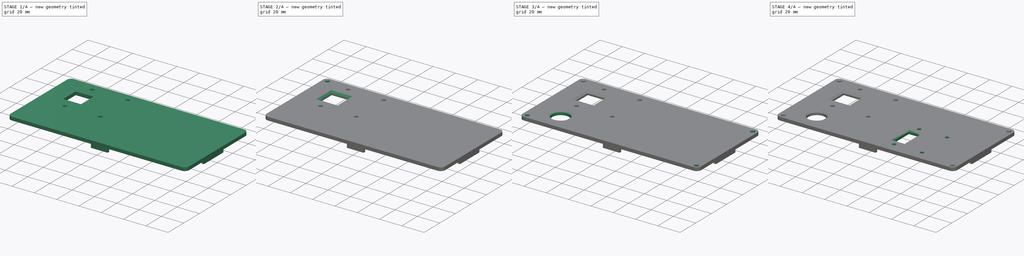
[diagram: build sequence overview — one tinted view per stage of 4, left to right]
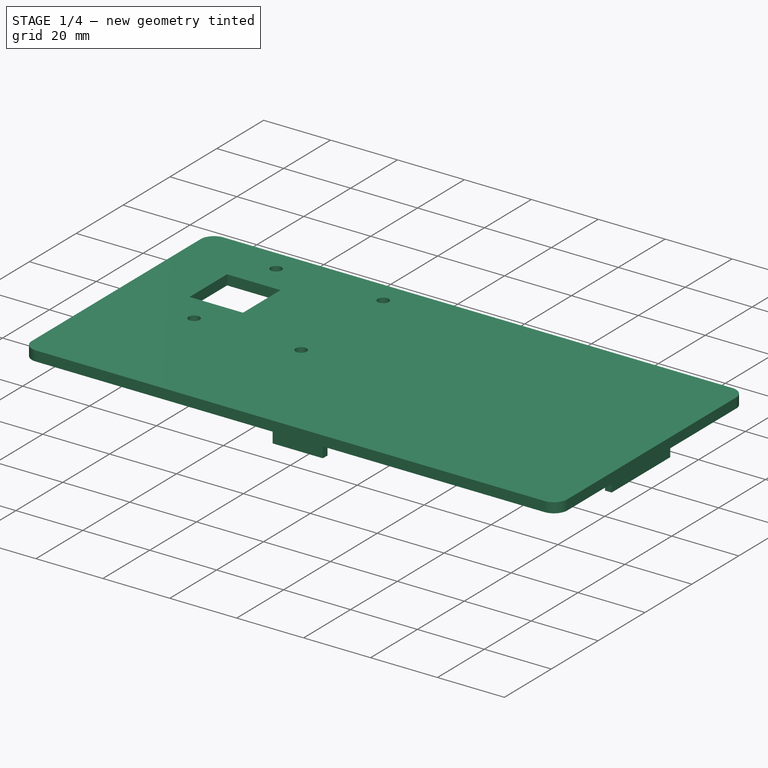
[diagram: stage 1 of 4 — iso view after this stage's code; geometry added in this stage tinted green]
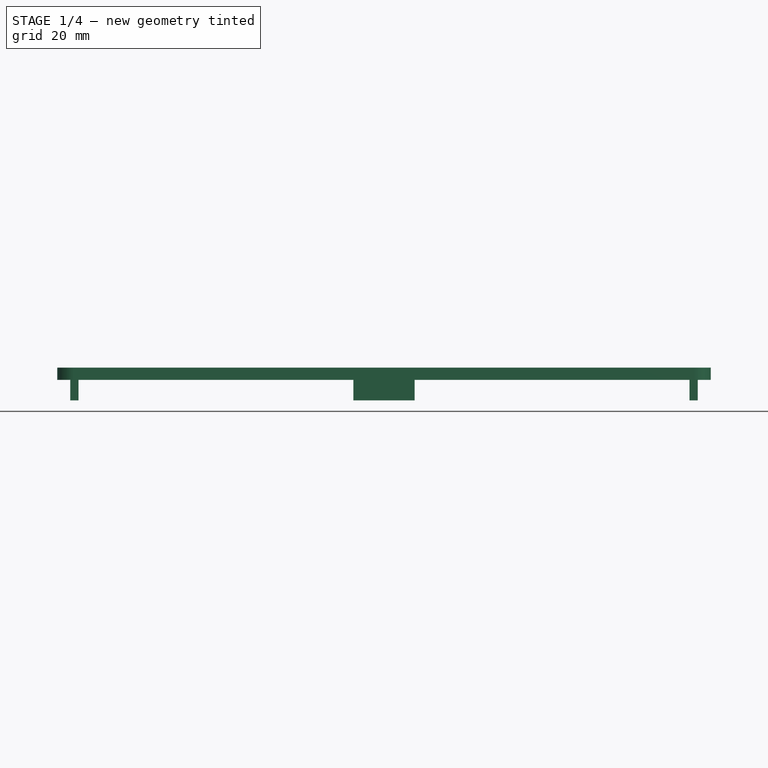
[diagram: stage 1 of 4 — front view after this stage's code; geometry added in this stage tinted green]
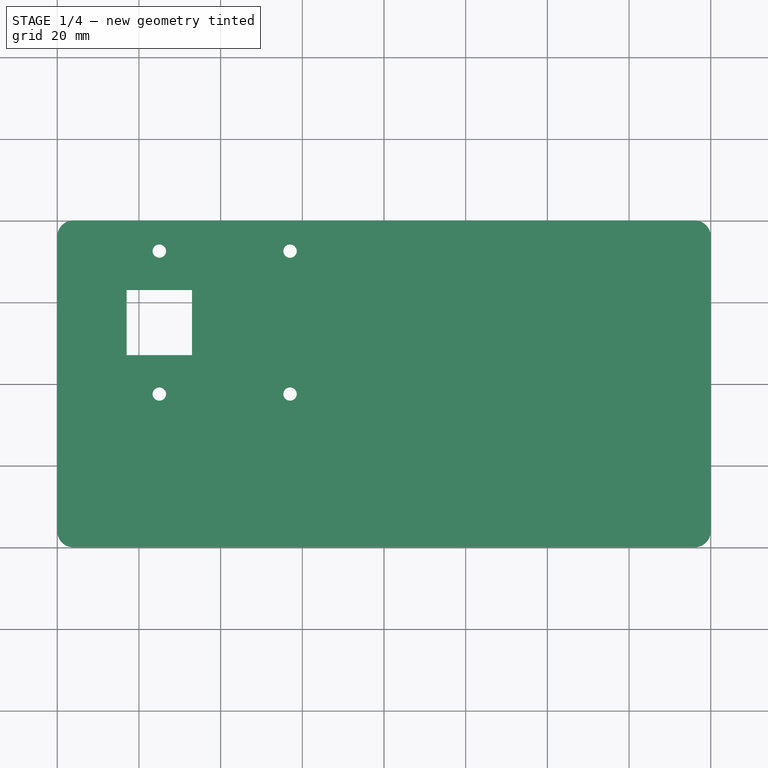
[diagram: stage 1 of 4 — top view after this stage's code; geometry added in this stage tinted green]
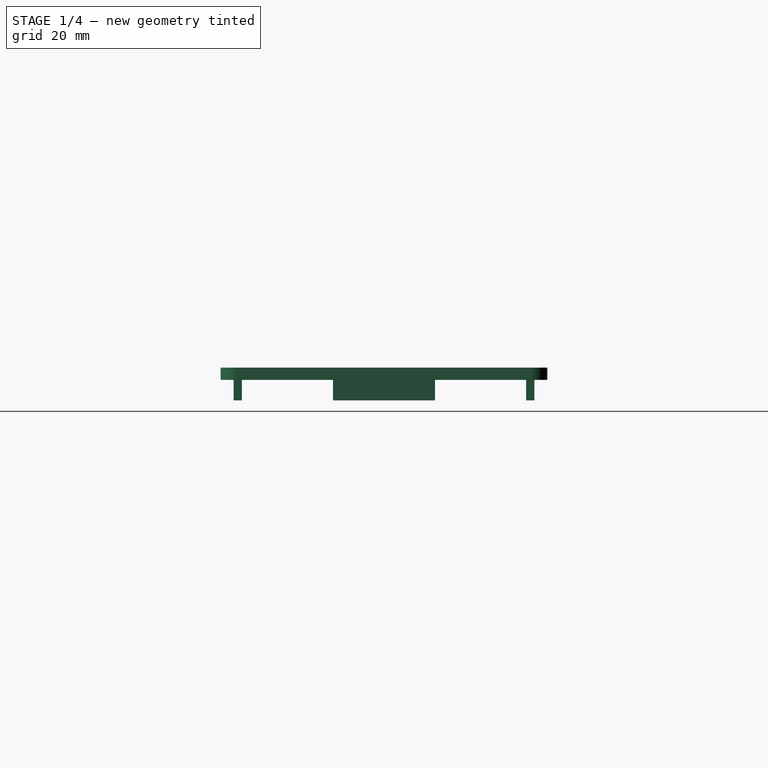
[diagram: stage 1 of 4 — right view after this stage's code; geometry added in this stage tinted green]
FCSTD DOCUMENT  (FreeCAD 1.0R39319 (Git))
Label: PokrywkaGlowna
License: All rights reserved
LicenseURL: https://en.wikipedia.org/wiki/All_rights_reserved
objects: Sketcher::SketchObject×7, PartDesign::Pocket×5, PartDesign::Chamfer×4, PartDesign::Pad×2, PartDesign::Mirrored×2, PartDesign::Fillet×1, PartDesign::MultiTransform×1, PartDesign::LinearPattern×1, PartDesign::Body×1
note: 59 computed .brp shape members not serialized (recipe doc carries the construction recipe); baked Part::Feature solids carry a one-line shape summary decoded from their .brp

FEATURE [Sketcher::SketchObject] Sketch
  ArcFitTolerance = 1e-06
  AttachmentSupport = -> [XY_Plane]
  FullyConstrained = true
  MakeInternals = false
  MapMode = 5
  sketch-geometry (5):
    g0: LineSegment StartX=-80 StartY=-40 StartZ=0 EndX=80 EndY=-40 EndZ=0
    g1: LineSegment StartX=80 StartY=-40 StartZ=0 EndX=80 EndY=40 EndZ=0
    g2: LineSegment StartX=80 StartY=40 StartZ=0 EndX=-80 EndY=40 EndZ=0
    g3: LineSegment StartX=-80 StartY=40 StartZ=0 EndX=-80 EndY=-40 EndZ=0
    g4: GeomPoint [constr] X=0 Y=0 Z=0
  constraints (12):
    c: Coincident(g0,g1)
    c: Coincident(g1,g2)
    c: Coincident(g2,g3)
    c: Coincident(g3,g0)
    c: Horizontal(g0)
    c: Horizontal(g2)
    c: Vertical(g1)
    c: Vertical(g3)
    c: Symmetric(g2,g0,g4)
    c: Distance(g1,g3) = 160
    c: Distance(g0,g2) = 80
    c: Coincident(g4,g-1)
FEATURE [PartDesign::Pad] Pad
  Direction = (0,0,1)
  Length = 3
  Length2 = 10
  Profile = -> Sketch
  ReferenceAxis = -> Sketch [N_Axis]
  Refine = true
  Suppressed = false
  Type = 0
FEATURE [PartDesign::Fillet] Fillet
  Base = -> Pad [Edge2,Edge5,Edge1,Edge8]
  BaseFeature = -> Pad
  Radius = 4
  Refine = true
  SupportTransform = false
  Suppressed = false
  UseAllEdges = false
FEATURE [Sketcher::SketchObject] Sketch001
  ArcFitTolerance = 1e-06
  AttachmentSupport = -> [Fillet]
  ExternalGeometry = -> [Fillet]
  FullyConstrained = false
  MakeInternals = false
  MapMode = 5
  Placement = pos=(0,0,0) rot=(1,0,0;3.14159rad)
  sketch-geometry (20):
    g0: LineSegment StartX=-76.8 StartY=-12.5 StartZ=0 EndX=-74.8 EndY=-12.5 EndZ=0
    g1: LineSegment StartX=-74.8 StartY=-12.5 StartZ=0 EndX=-74.8 EndY=12.5 EndZ=0
    g2: LineSegment StartX=-74.8 StartY=12.5 StartZ=0 EndX=-76.8 EndY=12.5 EndZ=0
    g3: LineSegment StartX=-76.8 StartY=12.5 StartZ=0 EndX=-76.8 EndY=-12.5 EndZ=0
    g4: GeomPoint [constr] X=-75.8 Y=0 Z=0
    g5: LineSegment StartX=-7.5 StartY=34.8 StartZ=0 EndX=7.5 EndY=34.8 EndZ=0
    g6: LineSegment StartX=7.5 StartY=34.8 StartZ=0 EndX=7.5 EndY=36.8 EndZ=0
    g7: LineSegment StartX=7.5 StartY=36.8 StartZ=0 EndX=-7.5 EndY=36.8 EndZ=0
    g8: LineSegment StartX=-7.5 StartY=36.8 StartZ=0 EndX=-7.5 EndY=34.8 EndZ=0
    g9: GeomPoint [constr] X=0 Y=35.8 Z=0
    g10: LineSegment StartX=76.8 StartY=-12.5 StartZ=0 EndX=74.8 EndY=-12.5 EndZ=0
    g11: LineSegment StartX=74.8 StartY=-12.5 StartZ=0 EndX=74.8 EndY=12.5 EndZ=0
    g12: LineSegment StartX=74.8 StartY=12.5 StartZ=0 EndX=76.8 EndY=12.5 EndZ=0
    g13: LineSegment StartX=76.8 StartY=12.5 StartZ=0 EndX=76.8 EndY=-12.5 EndZ=0
    g14: GeomPoint [constr] X=75.8 Y=0 Z=0
    g15: LineSegment StartX=-7.5 StartY=-34.8 StartZ=0 EndX=7.5 EndY=-34.8 EndZ=0
    g16: LineSegment StartX=7.5 StartY=-34.8 StartZ=0 EndX=7.5 EndY=-36.8 EndZ=0
    g17: LineSegment StartX=7.5 StartY=-36.8 StartZ=0 EndX=-7.5 EndY=-36.8 EndZ=0
    g18: LineSegment StartX=-7.5 StartY=-36.8 StartZ=0 EndX=-7.5 EndY=-34.8 EndZ=0
    g19: GeomPoint [constr] X=0 Y=-35.8 Z=0
  constraints (48):
    c: Coincident(g0,g1)
    c: Coincident(g1,g2)
    c: Coincident(g2,g3)
    c: Coincident(g3,g0)
    c: Horizontal(g0)
    c: Horizontal(g2)
    c: Vertical(g1)
    c: Vertical(g3)
    c: Symmetric(g2,g0,g4)
    c: Distance(g1,g3) = 2
    c: Distance(g0,g2) = 25
    c: PointOnObject(g4,g-1)
    c: Coincident(g5,g6)
    c: Coincident(g6,g7)
    c: Coincident(g7,g8)
    c: Coincident(g8,g5)
    c: Horizontal(g5)
    c: Horizontal(g7)
    c: Vertical(g6)
    c: Vertical(g8)
    c: Symmetric(g7,g5,g9)
    c: Distance(g6,g8) = 15
    c: Distance(g5,g7) = 2
    c: PointOnObject(g9,g-2)
    c: Distance(g7,g-5) = 3.2
    c: Distance(g3,g-3) = 3.2
    c: Coincident(g10,g11)
    c: Coincident(g11,g12)
    c: Coincident(g12,g13)
    c: Coincident(g13,g10)
    c: Horizontal(g10)
    c: Horizontal(g12)
    c: Vertical(g11)
    c: Vertical(g13)
    c: Symmetric(g12,g10,g14)
    c: Distance(g11,g13) = 2
    c: Distance(g10,g12) = 25
    c: Coincident(g15,g16)
    c: Coincident(g16,g17)
    c: Coincident(g17,g18)
    c: Coincident(g18,g15)
    c: Horizontal(g15)
    c: Horizontal(g17)
    c: Vertical(g16)
    c: Vertical(g18)
    c: Symmetric(g17,g15,g19)
    c: Distance(g16,g18) = 15
    c: Distance(g15,g17) = 2
FEATURE [PartDesign::Pad] Pad001
  BaseFeature = -> Fillet
  Direction = (0,0,-1)
  Length = 5
  Length2 = 10
  Profile = -> Sketch001
  ReferenceAxis = -> Sketch001 [N_Axis]
  Refine = true
  Suppressed = false
  Type = 0
FEATURE [Sketcher::SketchObject] Sketch002
  ArcFitTolerance = 1e-06
  AttachmentSupport = -> [Pad001]
  ExternalGeometry = -> [Pad001]
  FullyConstrained = true
  MakeInternals = false
  MapMode = 5
  Placement = pos=(0,0,3) rot=(0,0,1;0rad)
  sketch-geometry (12):
    g0: Circle [constr] CenterX=-55 CenterY=15 CenterZ=0 NormalX=0 NormalY=0 NormalZ=1 AngleXU=0 Radius=17.5
    g1: LineSegment StartX=-63 StartY=7 StartZ=0 EndX=-47 EndY=7 EndZ=0
    g2: LineSegment StartX=-47 StartY=7 StartZ=0 EndX=-47 EndY=23 EndZ=0
    g3: LineSegment StartX=-47 StartY=23 StartZ=0 EndX=-63 EndY=23 EndZ=0
    g4: LineSegment StartX=-63 StartY=23 StartZ=0 EndX=-63 EndY=7 EndZ=0
    g5: GeomPoint [constr] X=-55 Y=15 Z=0
    g6: Circle CenterX=-55 CenterY=32.5 CenterZ=0 NormalX=0 NormalY=0 NormalZ=1 AngleXU=0 Radius=1.65
    g7: Circle CenterX=-55 CenterY=-2.5 CenterZ=0 NormalX=0 NormalY=0 NormalZ=1 AngleXU=0 Radius=1.65
    g8: Circle CenterX=-23 CenterY=32.5 CenterZ=0 NormalX=0 NormalY=0 NormalZ=1 AngleXU=0 Radius=1.65
    g9: LineSegment [constr] StartX=-23 StartY=32.5 StartZ=0 EndX=-55 EndY=32.5 EndZ=0
    g10: LineSegment [constr] StartX=-55 StartY=-2.5 StartZ=0 EndX=-23 EndY=-2.5 EndZ=0
    g11: Circle CenterX=-23 CenterY=-2.5 CenterZ=0 NormalX=0 NormalY=0 NormalZ=1 AngleXU=0 Radius=1.65
  constraints (31):
    c: Diameter(g0) = 35
    c: Distance(g0,g-4) = 25
    c: Distance(g0,g-3) = 25
    c: Coincident(g1,g2)
    c: Coincident(g2,g3)
    c: Coincident(g3,g4)
    c: Coincident(g4,g1)
    c: Horizontal(g1)
    c: Horizontal(g3)
    c: Vertical(g2)
    c: Vertical(g4)
    c: Symmetric(g3,g1,g5)
    c: Distance(g2,g4) = 16
    c: Distance(g1,g3) = 16
    c: Coincident(g5,g0)
    c: Diameter(g6) = 3.3
    c: PointOnObject(g6,g0)
    c: Vertical(g6,g0)
    c: Diameter(g7) = 3.3
    c: PointOnObject(g7,g0)
    c: Vertical(g7,g0)
    c: Horizontal(g9)
    c: Coincident(g8,g9)
    c: Coincident(g9,g6)
    c: Coincident(g10,g7)
    c: Horizontal(g10)
    c: Equal(g10,g9)
    c: Coincident(g11,g10)
    c: Equal(g11,g8)
    c: Equal(g11,g7)
    c: DistanceX(g9,g9) = 32
FEATURE [PartDesign::Pocket] Pocket
  BaseFeature = -> Pad001
  Direction = (0,0,-1)
  Length = 5
  Length2 = 5
  Profile = -> Sketch002
  ReferenceAxis = -> Sketch002 [N_Axis]
  Refine = true
  Suppressed = false
  Type = 1
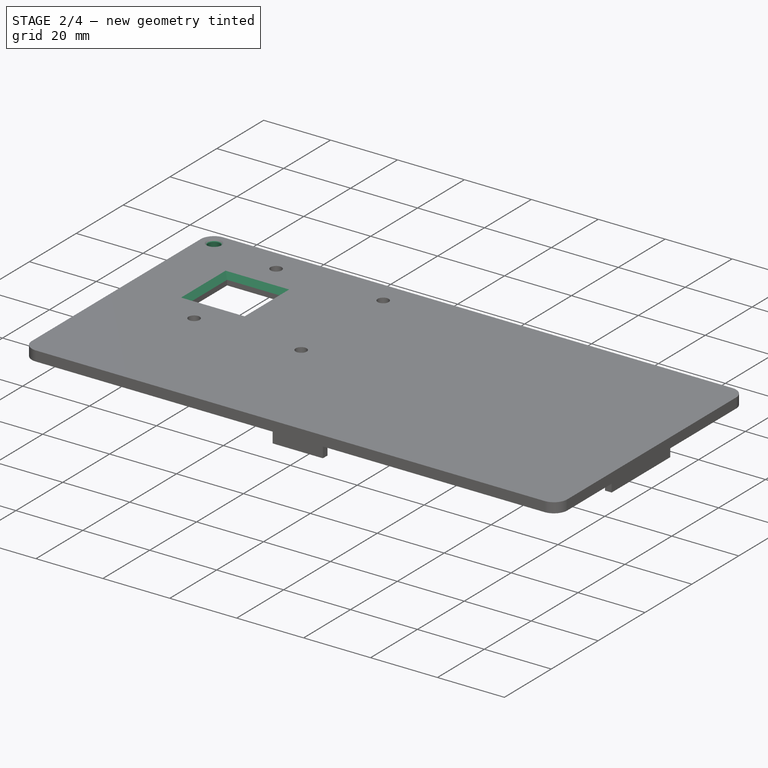
[diagram: stage 2 of 4 — iso view after this stage's code; geometry added in this stage tinted green]
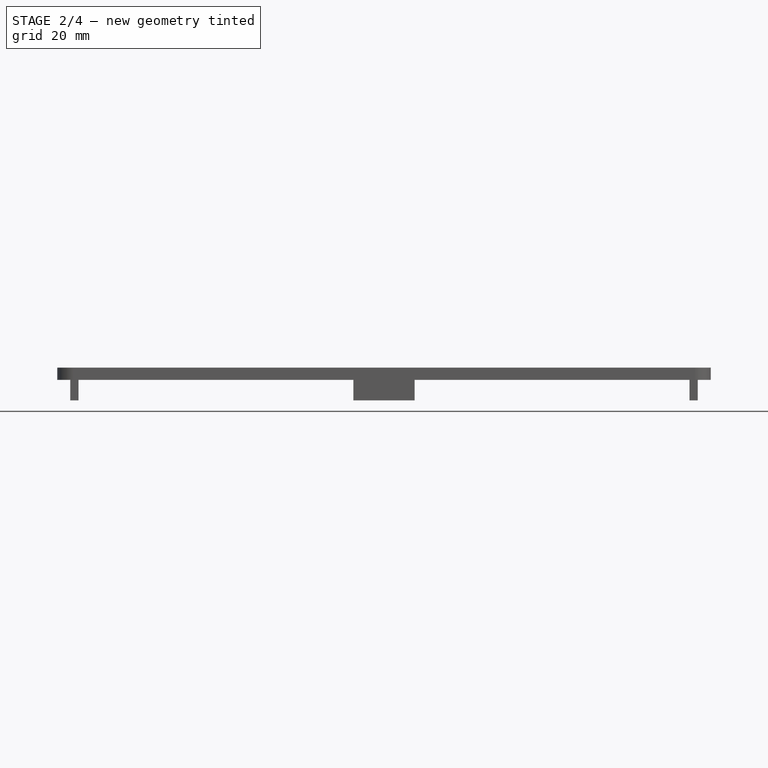
[diagram: stage 2 of 4 — front view after this stage's code; geometry added in this stage tinted green]
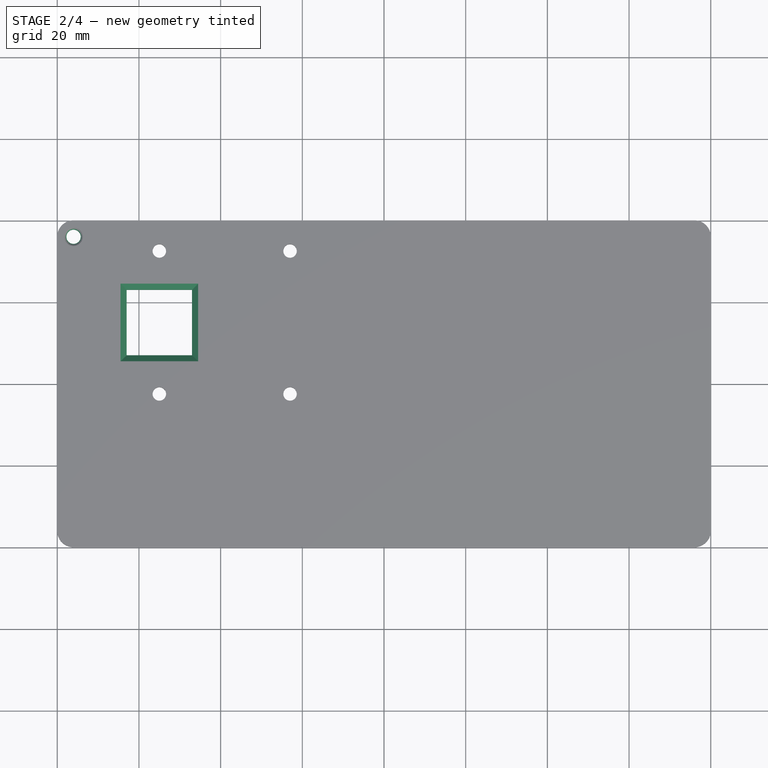
[diagram: stage 2 of 4 — top view after this stage's code; geometry added in this stage tinted green]
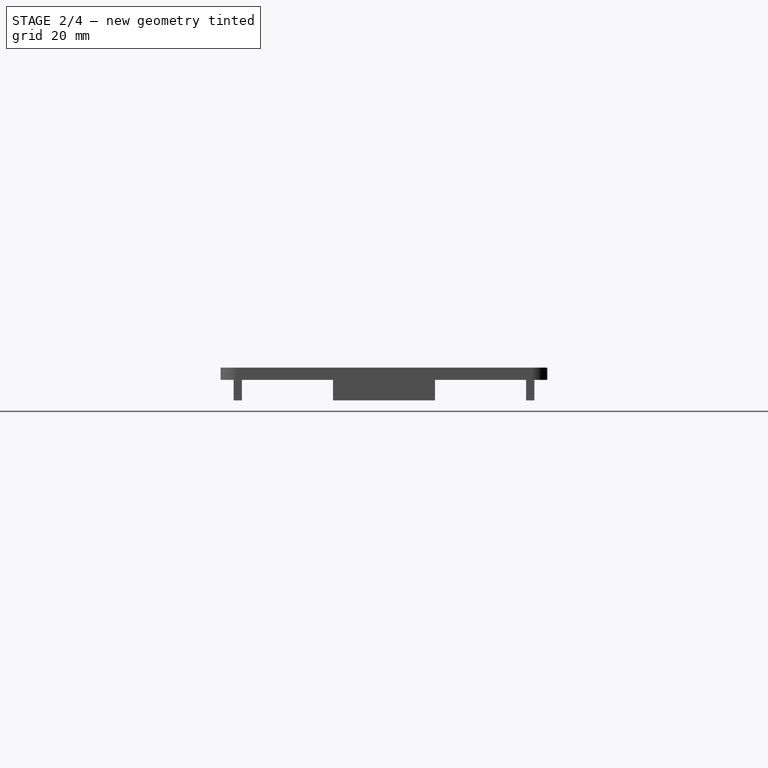
[diagram: stage 2 of 4 — right view after this stage's code; geometry added in this stage tinted green]
FEATURE [PartDesign::Chamfer] Chamfer
  Angle = 45
  Base = -> Pocket [Edge49,Edge50,Edge48,Edge47]
  BaseFeature = -> Pocket
  ChamferType = 0
  FlipDirection = false
  Refine = true
  Size = 1.5
  Size2 = 1
  SupportTransform = false
  Suppressed = false
  UseAllEdges = false
FEATURE [Sketcher::SketchObject] Sketch003
  ArcFitTolerance = 1e-06
  AttachmentSupport = -> [Chamfer]
  ExternalGeometry = -> [Chamfer]
  FullyConstrained = true
  MakeInternals = false
  MapMode = 5
  Placement = pos=(0,0,3) rot=(0,0,1;0rad)
  sketch-geometry (1):
    g0: Circle CenterX=-76 CenterY=36 CenterZ=0 NormalX=0 NormalY=0 NormalZ=1 AngleXU=0 Radius=1.75
  constraints (2):
    c: Diameter(g0) = 3.5
    c: Coincident(g0,g-3)
FEATURE [PartDesign::Pocket] Pocket001
  BaseFeature = -> Chamfer
  Direction = (0,0,-1)
  Length = 5
  Length2 = 5
  Profile = -> Sketch003
  ReferenceAxis = -> Sketch003 [N_Axis]
  Refine = true
  Suppressed = false
  Type = 1
FEATURE [PartDesign::Chamfer] Chamfer001
  Angle = 45
  Base = -> Pocket001 [Edge15]
  BaseFeature = -> Pocket001
  ChamferType = 0
  FlipDirection = false
  Refine = true
  Size = 0.5
  Size2 = 1
  SupportTransform = false
  Suppressed = false
  UseAllEdges = false
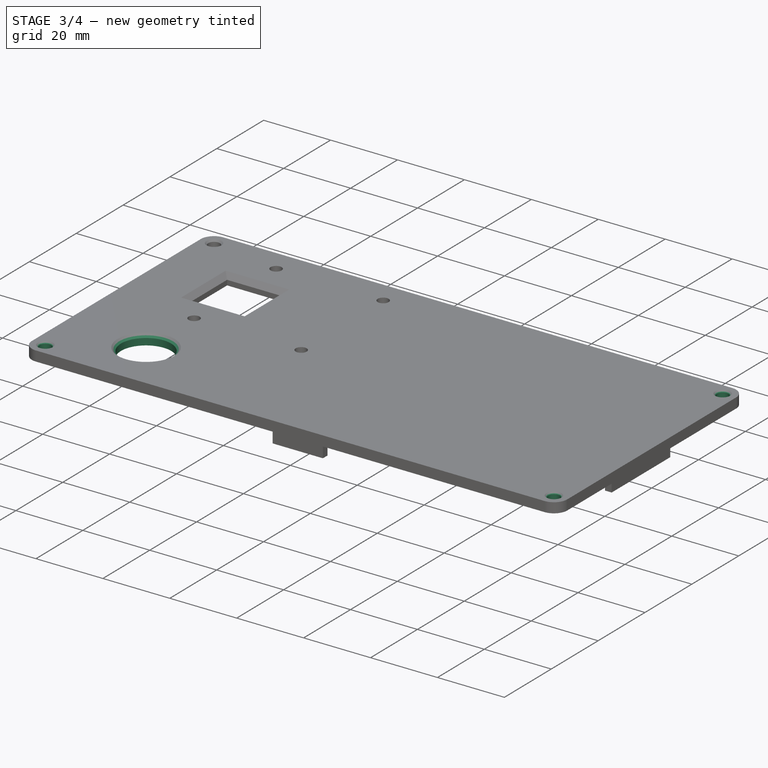
[diagram: stage 3 of 4 — iso view after this stage's code; geometry added in this stage tinted green]
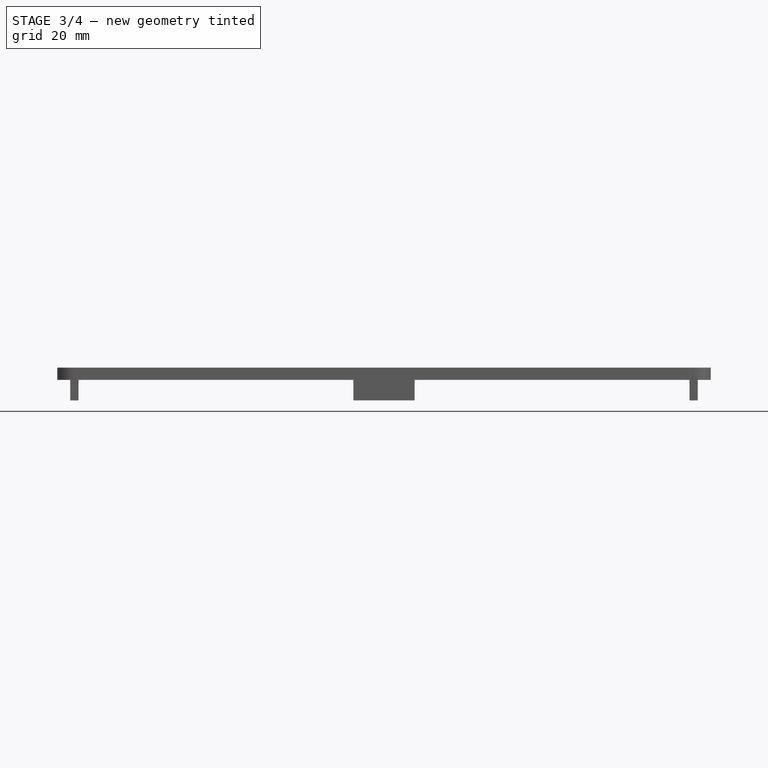
[diagram: stage 3 of 4 — front view after this stage's code; geometry added in this stage tinted green]
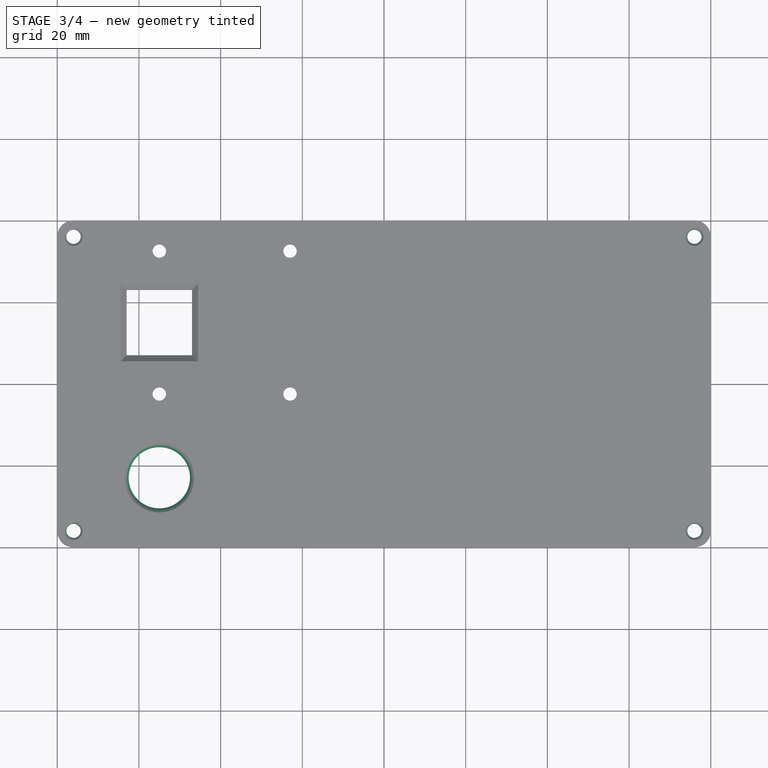
[diagram: stage 3 of 4 — top view after this stage's code; geometry added in this stage tinted green]
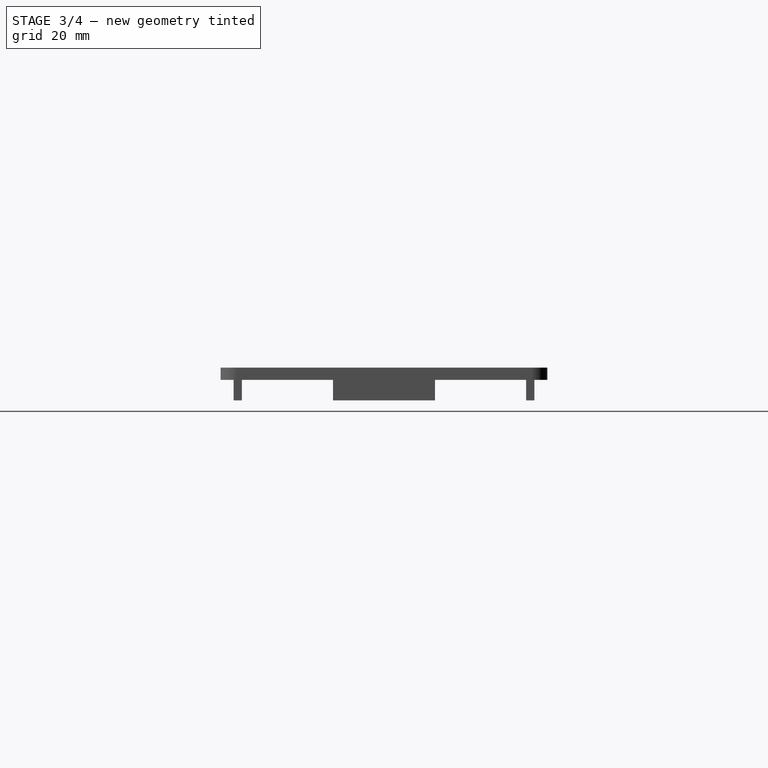
[diagram: stage 3 of 4 — right view after this stage's code; geometry added in this stage tinted green]
FEATURE [PartDesign::Mirrored] Mirrored
  MirrorPlane = -> Sketch003 [V_Axis]
  Refine = true
  Suppressed = false
  TransformMode = 0
FEATURE [PartDesign::Mirrored] Mirrored001
  MirrorPlane = -> Sketch003 [H_Axis]
  Refine = true
  Suppressed = false
  TransformMode = 0
FEATURE [PartDesign::MultiTransform] MultiTransform
  BaseFeature = -> Chamfer001
  Originals = -> [Pocket001,Chamfer001]
  Refine = true
  Suppressed = false
  TransformMode = 0
  Transformations = -> [Mirrored,Mirrored001]
FEATURE [Sketcher::SketchObject] Sketch004
  ArcFitTolerance = 1e-06
  AttachmentSupport = -> [MultiTransform]
  ExternalGeometry = -> [MultiTransform]
  FullyConstrained = true
  MakeInternals = false
  MapMode = 5
  Placement = pos=(0,0,3) rot=(0,0,1;0rad)
  sketch-geometry (1):
    g0: Circle CenterX=-55 CenterY=-23 CenterZ=0 NormalX=0 NormalY=0 NormalZ=1 AngleXU=0 Radius=7.5
  constraints (3):
    c: Diameter(g0) = 15
    c: Distance(g0,g-3) = 25
    c: Distance(g0,g-4) = 17
FEATURE [PartDesign::Pocket] Pocket002
  BaseFeature = -> MultiTransform
  Direction = (0,0,-1)
  Length = 5
  Length2 = 5
  Profile = -> Sketch004
  ReferenceAxis = -> Sketch004 [N_Axis]
  Refine = true
  Suppressed = false
  Type = 1
FEATURE [PartDesign::Chamfer] Chamfer002
  Angle = 45
  Base = -> Pocket002 [Edge10]
  BaseFeature = -> Pocket002
  ChamferType = 0
  FlipDirection = false
  Refine = true
  Size = 1
  Size2 = 1
  SupportTransform = false
  Suppressed = false
  UseAllEdges = false
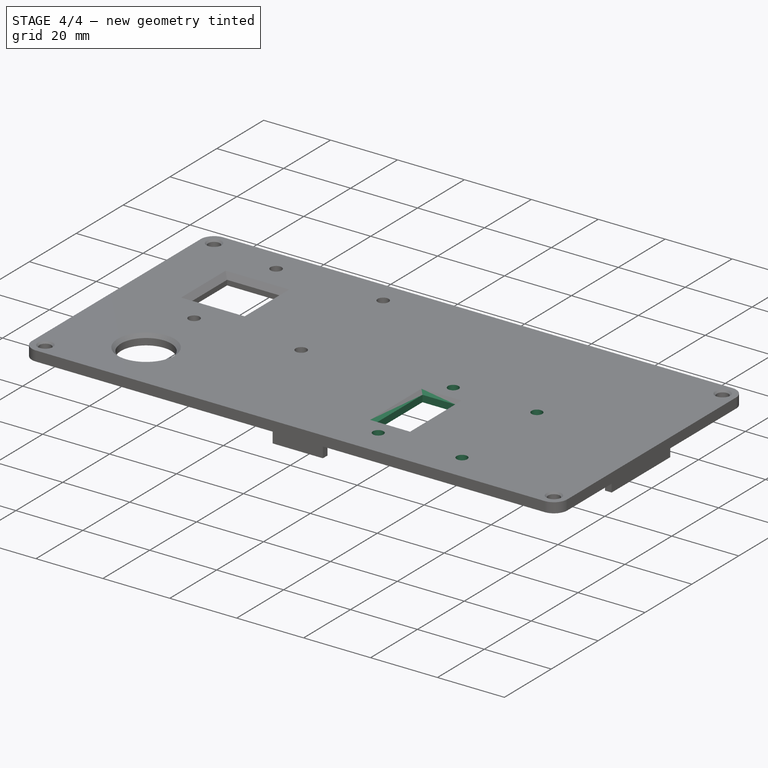
[diagram: stage 4 of 4 — iso view after this stage's code; geometry added in this stage tinted green]
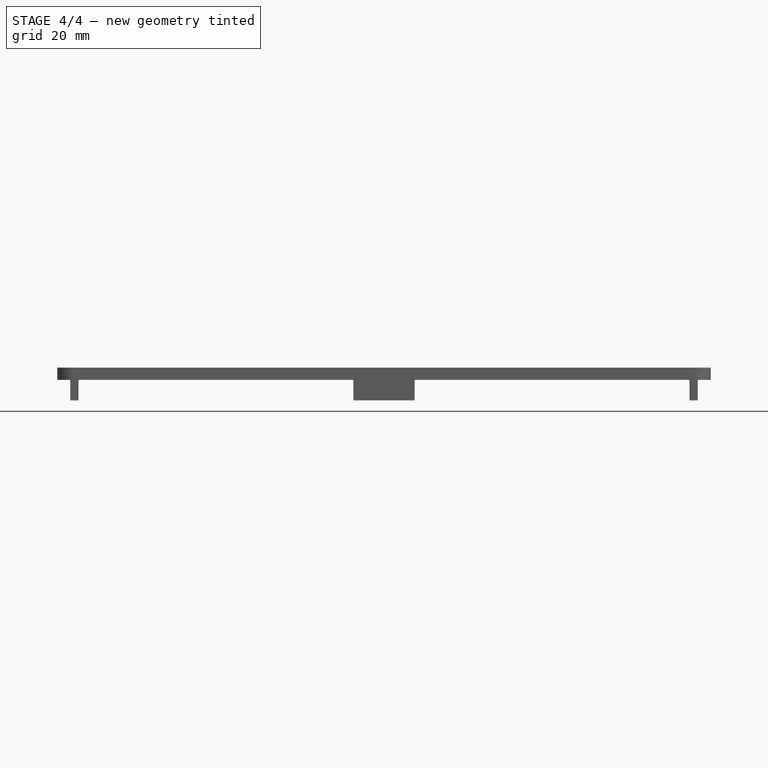
[diagram: stage 4 of 4 — front view after this stage's code; geometry added in this stage tinted green]
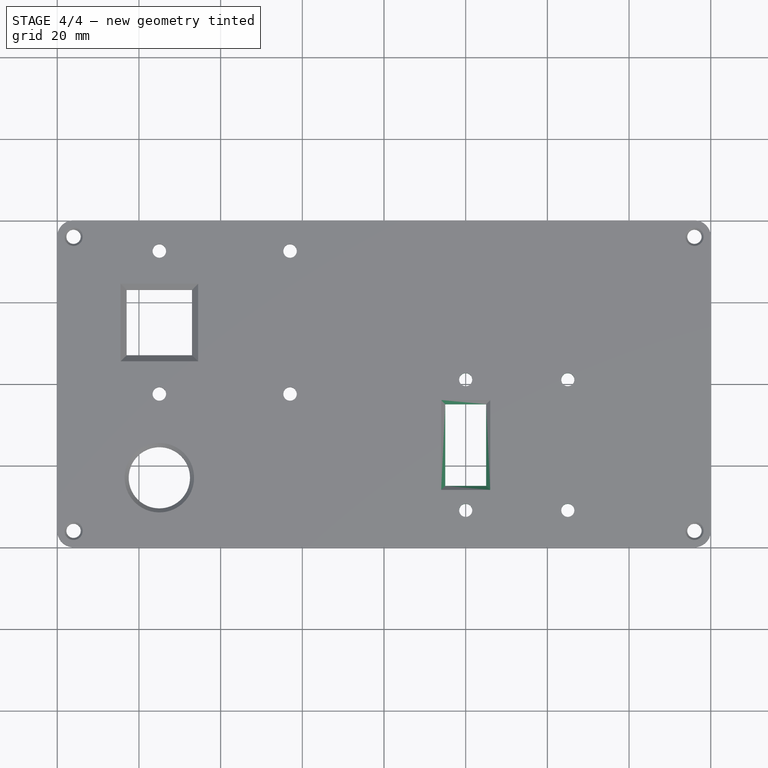
[diagram: stage 4 of 4 — top view after this stage's code; geometry added in this stage tinted green]
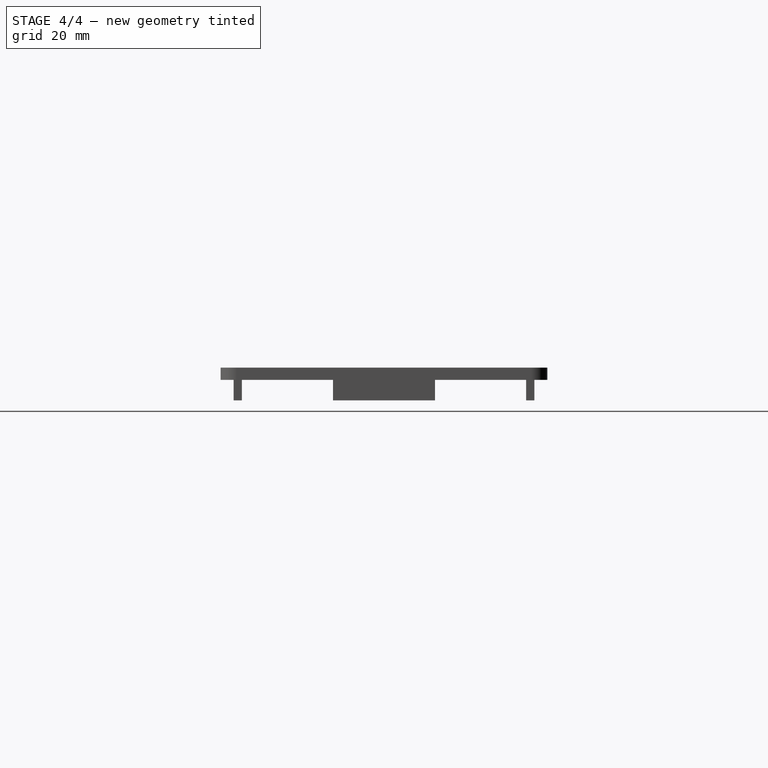
[diagram: stage 4 of 4 — right view after this stage's code; geometry added in this stage tinted green]
FEATURE [Sketcher::SketchObject] Sketch005
  ArcFitTolerance = 1e-06
  AttachmentSupport = -> [Chamfer002]
  ExternalGeometry = -> [Chamfer002]
  FullyConstrained = true
  MakeInternals = false
  MapMode = 5
  Placement = pos=(0,0,3) rot=(0,0,1;0rad)
  sketch-geometry (4):
    g0: LineSegment StartX=15 StartY=-25 StartZ=0 EndX=25 EndY=-25 EndZ=0
    g1: LineSegment StartX=25 StartY=-25 StartZ=0 EndX=25 EndY=-5 EndZ=0
    g2: LineSegment StartX=25 StartY=-5 StartZ=0 EndX=15 EndY=-5 EndZ=0
    g3: LineSegment StartX=15 StartY=-5 StartZ=0 EndX=15 EndY=-25 EndZ=0
  constraints (12):
    c: Coincident(g0,g1)
    c: Coincident(g1,g2)
    c: Coincident(g2,g3)
    c: Coincident(g3,g0)
    c: Horizontal(g0)
    c: Horizontal(g2)
    c: Vertical(g1)
    c: Vertical(g3)
    c: DistanceY(g1,g1) = 20
    c: DistanceX(g2,g2) = 10
    c: Distance(g-4,g0) = 15
    c: Distance(g-3,g1) = 55
FEATURE [PartDesign::Pocket] Pocket003
  BaseFeature = -> Chamfer002
  Direction = (0,0,-1)
  Length = 1
  Length2 = 5
  Profile = -> Sketch005
  ReferenceAxis = -> Sketch005 [N_Axis]
  Refine = true
  Suppressed = false
  Type = 1
FEATURE [PartDesign::Chamfer] Chamfer003
  Angle = 45
  Base = -> Pocket003 [Edge16,Edge17,Edge14,Edge15]
  BaseFeature = -> Pocket003
  ChamferType = 0
  FlipDirection = false
  Refine = true
  Size = 1
  Size2 = 1
  SupportTransform = false
  Suppressed = false
  UseAllEdges = false
FEATURE [Sketcher::SketchObject] Sketch006
  ArcFitTolerance = 1e-06
  AttachmentSupport = -> [Chamfer003]
  ExternalGeometry = -> [Chamfer003]
  FullyConstrained = true
  MakeInternals = false
  MapMode = 5
  Placement = pos=(0,0,3) rot=(0,0,1;0rad)
  sketch-geometry (6):
    g0: Circle CenterX=20 CenterY=-31 CenterZ=0 NormalX=0 NormalY=0 NormalZ=1 AngleXU=0 Radius=1.6
    g1: LineSegment [constr] StartX=14 StartY=-26 StartZ=0 EndX=20 EndY=-31 EndZ=0
    g2: LineSegment [constr] StartX=20 StartY=-31 StartZ=0 EndX=26 EndY=-26 EndZ=0
    g3: LineSegment [constr] StartX=14 StartY=-4 StartZ=0 EndX=20 EndY=1 EndZ=0
    g4: LineSegment [constr] StartX=26 StartY=-4 StartZ=0 EndX=20 EndY=1 EndZ=0
    g5: Circle CenterX=20 CenterY=1 CenterZ=0 NormalX=0 NormalY=0 NormalZ=1 AngleXU=0 Radius=1.6
  constraints (14):
    c: Diameter(g0) = 3.2
    c: Coincident(g1,g-6)
    c: Coincident(g1,g0)
    c: Coincident(g2,g0)
    c: Coincident(g2,g-6)
    c: Equal(g1,g2)
    c: Coincident(g3,g-4)
    c: Coincident(g4,g-5)
    c: Coincident(g4,g3)
    c: Equal(g4,g3)
    c: Equal(g4,g2)
    c: Coincident(g5,g3)
    c: Equal(g5,g0)
    c: DistanceY(g0,g3) = 32
FEATURE [PartDesign::Pocket] Pocket004
  BaseFeature = -> Chamfer003
  Direction = (0,0,-1)
  Length = 5
  Length2 = 5
  Profile = -> Sketch006
  ReferenceAxis = -> Sketch006 [N_Axis]
  Refine = true
  Suppressed = false
  Type = 1
FEATURE [PartDesign::LinearPattern] LinearPattern
  BaseFeature = -> Pocket004
  Direction = -> Sketch006 [H_Axis]
  Length = 25
  Mode = 0
  Occurrences = 2
  Offset = 25
  Originals = -> [Pocket004]
  Refine = true
  Suppressed = false
  TransformMode = 0
FEATURE [PartDesign::Body] Body
  AllowCompound = false
  Group = -> [Sketch,Pad,Fillet,Sketch001,Pad001,Sketch002,Pocket,Chamfer,Sketch003,Pocket001,Chamfer001,MultiTransform,Mirrored,Mirrored001,Sketch004,Pocket002,Chamfer002,Sketch005,Pocket003,Chamfer003,Sketch006,Pocket004,LinearPattern]
  Origin = -> Origin
  Tip = -> LinearPattern
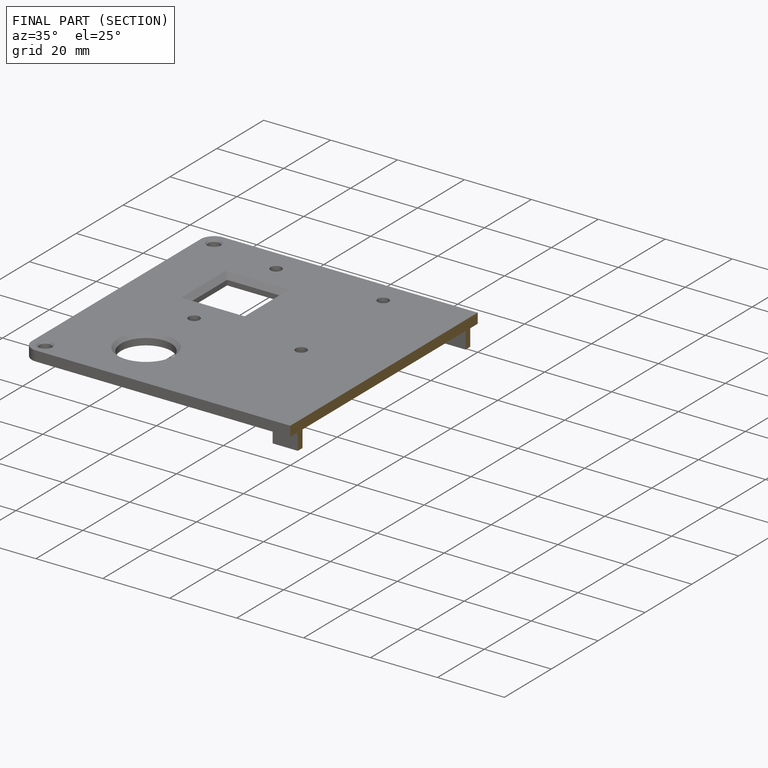
[diagram: finished part — half-section view (interior)]
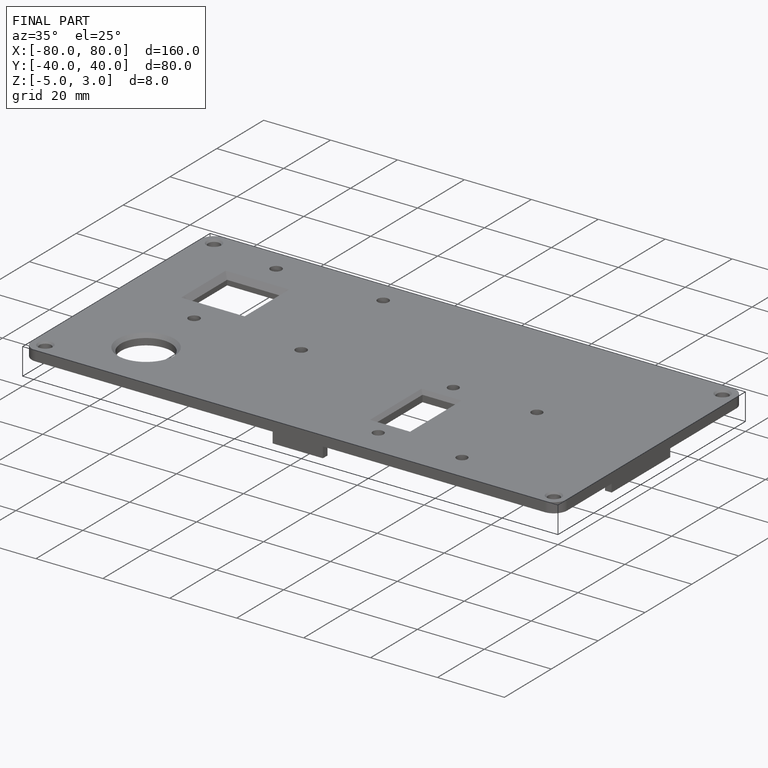
[diagram: finished part — iso view with bounding-box wireframe]
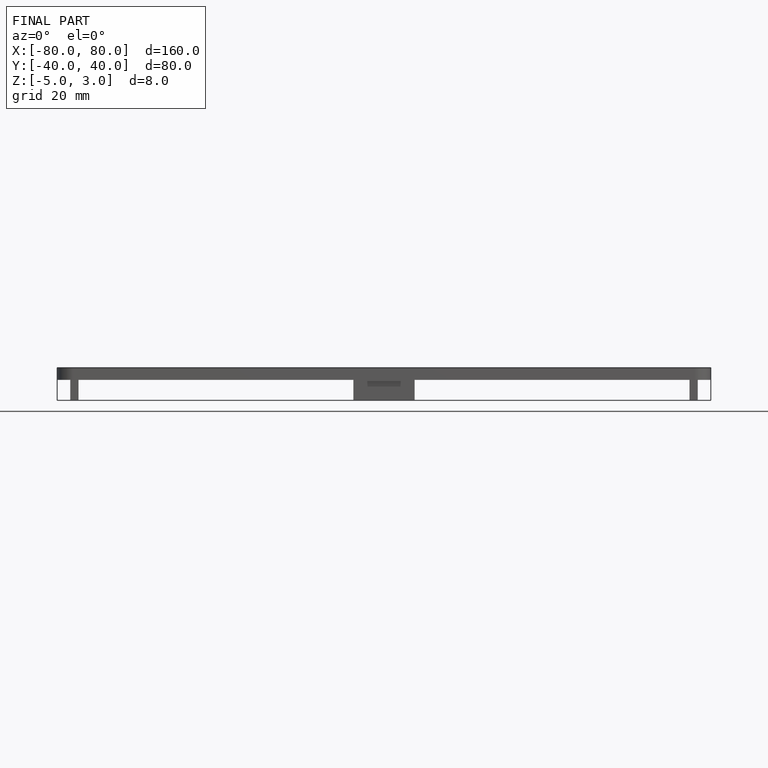
[diagram: finished part — front view with bounding-box wireframe]
